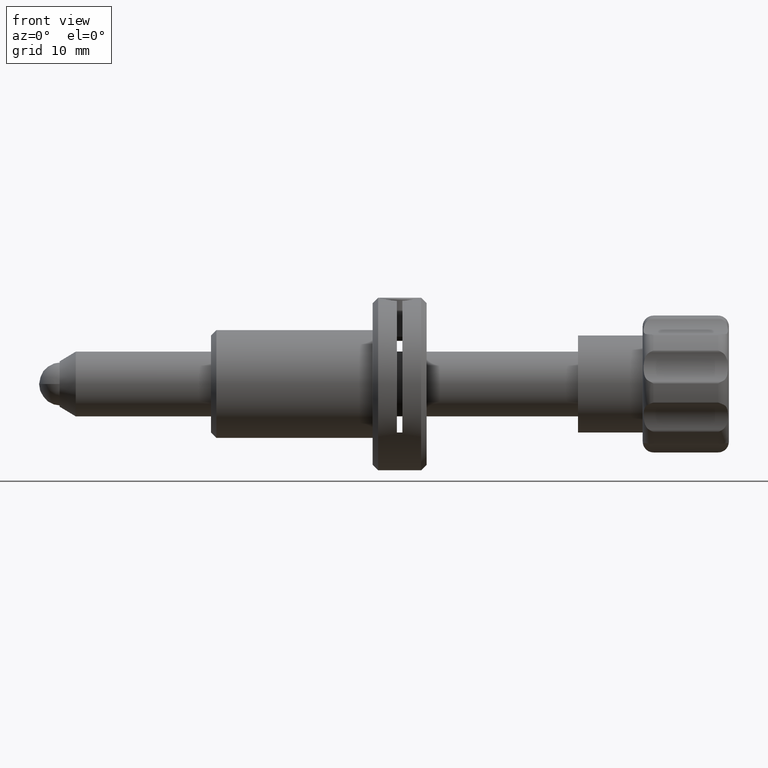
[diagram: clean part render]
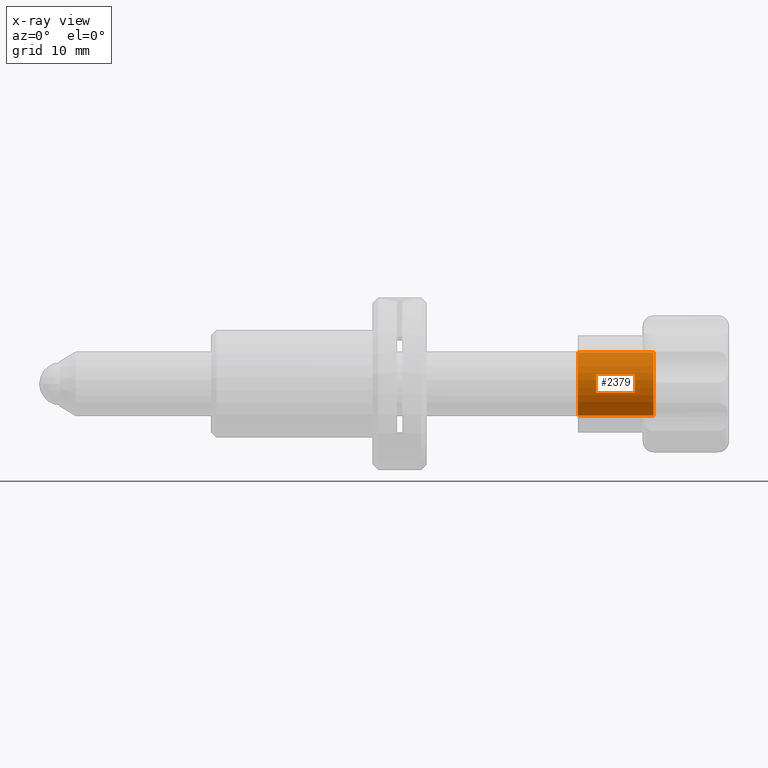
[diagram: x-ray — body ghosted, one internal face saturated and labeled with its STEP entity id]
A machine part, front view, then the same camera in x-ray: the body is ghosted and one INTERNAL B-rep face — a face not visible from any outside direction — is saturated and labeled: STEP entity #2379.
In plain terms, the highlighted cylindrical surface (edge-blend (fillet) strip) has radius 2.95 mm, axis along (-1, 0, 0).
Its self-contained STEP definition (entity closure, byte-faithful):
#54 = ORIENTED_EDGE ( 'NONE', *, *, #3660, .T. ) ;
#58 = DIRECTION ( 'NONE',  ( 0.000000000000000000, 5.204170427930331920E-18, -1.000000000000000000 ) ) ;
#236 = CARTESIAN_POINT ( 'NONE',  ( 28.05000000000000426, -3.443357432102044523E-17, -2.211074569426205868E-16 ) ) ;
#258 = DIRECTION ( 'NONE',  ( -1.000000000000000000, 3.443357432102106769E-17, 2.211074569426361915E-16 ) ) ;
#310 = EDGE_CURVE ( 'NONE', #2591, #3528, #929, .T. ) ;
#322 = EDGE_LOOP ( 'NONE', ( #1816, #3153, #54, #726 ) ) ;
#467 = AXIS2_PLACEMENT_3D ( 'NONE', #236, #1467, #2052 ) ;
#541 = CARTESIAN_POINT ( 'NONE',  ( 28.05000000000000426, -4.110566828318856882E-16, 2.950000000000017053 ) ) ;
#714 = DIRECTION ( 'NONE',  ( -1.000000000000000000, 3.443357432102106769E-17, 2.211074569426361915E-16 ) ) ;
#726 = ORIENTED_EDGE ( 'NONE', *, *, #310, .T. ) ;
#929 = CIRCLE ( 'NONE', #2624, 2.950000000000017497 ) ;
#1367 = AXIS2_PLACEMENT_3D ( 'NONE', #2897, #2050, #3759 ) ;
#1403 = CARTESIAN_POINT ( 'NONE',  ( 21.05000000000000782, -2.905391727083092581E-16, 2.950000000000001954 ) ) ;
#1423 = LINE ( 'NONE', #2622, #3041 ) ;
#1467 = DIRECTION ( 'NONE',  ( -1.000000000000000000, 3.443357432102106769E-17, 2.211074569426361915E-16 ) ) ;
#1485 = CARTESIAN_POINT ( 'NONE',  ( 28.05000000000000426, -2.905391727083109344E-16, 2.950000000000000178 ) ) ;
#1816 = ORIENTED_EDGE ( 'NONE', *, *, #2006, .F. ) ;
#2006 = EDGE_CURVE ( 'NONE', #3260, #3528, #3223, .T. ) ;
#2022 = DIRECTION ( 'NONE',  ( -1.000000000000000000, 3.443357432102106769E-17, 2.211074569426361915E-16 ) ) ;
#2050 = DIRECTION ( 'NONE',  ( -1.000000000000000000, 3.443357432102106769E-17, 2.211074569426361915E-16 ) ) ;
#2052 = DIRECTION ( 'NONE',  ( 0.000000000000000000, 5.204170427930323446E-18, -1.000000000000000000 ) ) ;
#2225 = CIRCLE ( 'NONE', #467, 2.950000000000017497 ) ;
#2379 = ADVANCED_FACE ( 'NONE', ( #3262 ), #3815, .F. ) ;
#2591 = VERTEX_POINT ( 'NONE', #3454 ) ;
#2622 = CARTESIAN_POINT ( 'NONE',  ( 28.05000000000000426, -1.908127155862590027E-17, -2.950000000000017497 ) ) ;
#2624 = AXIS2_PLACEMENT_3D ( 'NONE', #2793, #714, #58 ) ;
#2793 = CARTESIAN_POINT ( 'NONE',  ( 21.05000000000000782, 2.066014459261326431E-16, 1.326644741655822917E-15 ) ) ;
#2897 = CARTESIAN_POINT ( 'NONE',  ( 28.05000000000000426, -3.443357432102044523E-17, -2.211074569426205868E-16 ) ) ;
#3041 = VECTOR ( 'NONE', #2022, 1000.000000000000000 ) ;
#3153 = ORIENTED_EDGE ( 'NONE', *, *, #3349, .F. ) ;
#3223 = LINE ( 'NONE', #541, #3555 ) ;
#3260 = VERTEX_POINT ( 'NONE', #1485 ) ;
#3262 = FACE_OUTER_BOUND ( 'NONE', #322, .T. ) ;
#3349 = EDGE_CURVE ( 'NONE', #3608, #3260, #2225, .T. ) ;
#3454 = CARTESIAN_POINT ( 'NONE',  ( 21.05000000000000782, 2.219537486885272281E-16, -2.950000000000016165 ) ) ;
#3528 = VERTEX_POINT ( 'NONE', #1403 ) ;
#3555 = VECTOR ( 'NONE', #258, 1000.000000000000000 ) ;
#3608 = VERTEX_POINT ( 'NONE', #3716 ) ;
#3660 = EDGE_CURVE ( 'NONE', #3608, #2591, #1423, .T. ) ;
#3716 = CARTESIAN_POINT ( 'NONE',  ( 28.05000000000000426, -1.908127155862590027E-17, -2.950000000000017497 ) ) ;
#3759 = DIRECTION ( 'NONE',  ( 0.000000000000000000, 5.204170427930323446E-18, -1.000000000000000000 ) ) ;
#3815 = CYLINDRICAL_SURFACE ( 'NONE', #1367, 2.950000000000017497 ) ;